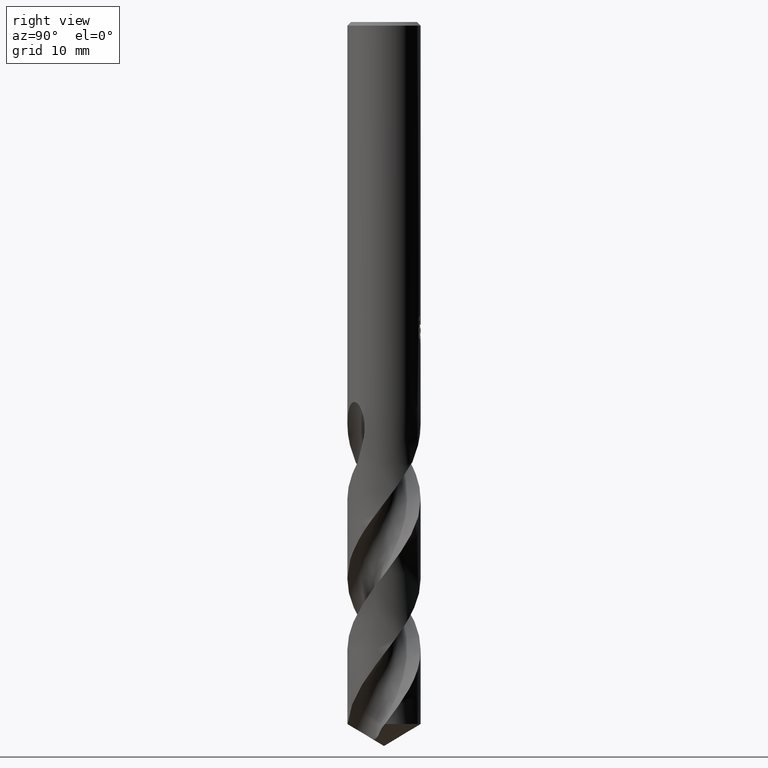
[diagram: clean part render]
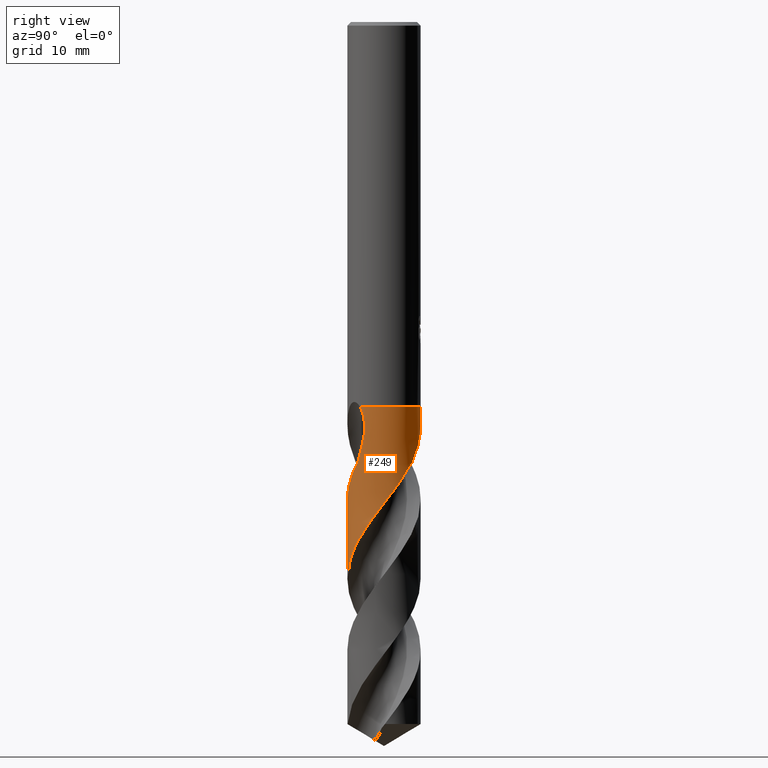
[diagram: same view with one face highlighted and labeled with its STEP entity id]
A machine part, right view. The second image highlights one B-rep face of the part: STEP entity #249.
In plain terms, the highlighted conical surface has half-angle 0 deg.
Its self-contained STEP definition (entity closure, byte-faithful):
#249=ADVANCED_FACE('',(#715),#716,.T.);
#257=VERTEX_POINT('',#725);
#309=VERTEX_POINT('',#781);
#311=EDGE_CURVE('',#333,#257,#783,.T.);
#313=VERTEX_POINT('',#785);
#317=EDGE_CURVE('',#431,#309,#789,.T.);
#333=VERTEX_POINT('',#808);
#375=VERTEX_POINT('',#856);
#413=VERTEX_POINT('',#899);
#431=VERTEX_POINT('',#917);
#513=EDGE_CURVE('',#313,#697,#1005,.T.);
#531=EDGE_CURVE('',#375,#309,#1024,.T.);
#543=EDGE_CURVE('',#333,#431,#1037,.T.);
#551=EDGE_CURVE('',#375,#413,#1046,.T.);
#581=EDGE_CURVE('',#697,#257,#1079,.T.);
#661=EDGE_CURVE('',#413,#313,#1163,.T.);
#697=VERTEX_POINT('',#1203);
#715=FACE_OUTER_BOUND('',#1211,.T.);
#716=CONICAL_SURFACE('',#1212,3.99995,2.89046099256783E-006);
#725=CARTESIAN_POINT('',(-1.21777905109929E-011,-3.99992914034282,-52.0815554692641));
#781=CARTESIAN_POINT('',(-1.18596217657772E-012,3.9999052060114,-43.8011007306286));
#783=LINE('',#1561,#1562);
#785=CARTESIAN_POINT('',(3.2544836176434,-2.32543022103747,-45.8628151484913));
#789=B_SPLINE_CURVE_WITH_KNOTS('',3,(#1569,#1570,#1571,#1572,#1573,#1574,#1575,#1576,#1577,#1578,#1579,#1580,#1581,#1582),.UNSPECIFIED.,.F.,.F.,(4,2,2,2,2,2,4),(0.0,1.95978279937062,3.02986246573041,3.99907486075391,5.12504900193477,6.47758972390981,7.17437695652977),.UNSPECIFIED.);
#808=CARTESIAN_POINT('',(1.01720232103812E-013,-3.99995417081684,-60.7412378104204));
#856=CARTESIAN_POINT('',(-4.87971918578224E-016,3.9999,-42.0));
#899=CARTESIAN_POINT('',(3.03029553357837,-2.61084449731786,-42.0));
#917=CARTESIAN_POINT('',(2.54883350937528,3.08265919556083,-48.053));
#1005=B_SPLINE_CURVE_WITH_KNOTS('',3,(#2806,#2807,#2808,#2809),.UNSPECIFIED.,.F.,.F.,(4,4),(0.0,2.29874023661087),.UNSPECIFIED.);
#1024=LINE('',#3152,#3153);
#1037=B_SPLINE_CURVE_WITH_KNOTS('',3,(#3308,#3309,#3310,#3311,#3312,#3313,#3314,#3315,#3316,#3317,#3318,#3319,#3320,#3321,#3322,#3323,#3324,#3325,#3326,#3327,#3328,#3329,#3330,#3331,#3332,#3333,#3334,#3335,#3336,#3337,#3338,#3339,#3340,#3341,#3342,#3343,#3344,#3345,#3346,#3347,#3348,#3349,#3350,#3351,#3352,#3353,#3354,#3355,#3356,#3357,#3358,#3359,#3360,#3361,#3362,#3363,#3364,#3365,#3366,#3367,#3368,#3369,#3370,#3371,#3372,#3373,#3374,#3375),.UNSPECIFIED.,.F.,.F.,(4,2,2,2,2,2,2,2,2,2,2,2,2,2,2,2,2,2,2,2,2,2,2,2,2,2,2,2,2,2,2,2,2,4),(0.0,1.08381704728036,2.69457633701438,3.906303774686,4.71752860917186,6.50800141971498,6.87784773316243,8.56059955861269,9.92706662388666,11.0227689845944,12.0787478253675,13.9114701973985,14.2383592020076,16.0993529177167,16.9316434101161,18.877634107045,19.0248297090575,20.2900278453995,22.1224821250209,23.1453343536838,24.8937144436607,26.264613155619,26.395979640286,28.5128920807949,28.9597118785904,30.6214988299567,33.1601492353627,34.3748303603895,35.1885733469438,35.5960557578818,36.0060165974515,36.6075316606588,37.3553390409897,38.8530327277368),.UNSPECIFIED.);
#1046=CIRCLE('',#3400,3.9999);
#1079=B_SPLINE_CURVE_WITH_KNOTS('',3,(#3487,#3488,#3489,#3490,#3491,#3492,#3493,#3494,#3495,#3496,#3497,#3498,#3499,#3500,#3501,#3502,#3503,#3504,#3505,#3506,#3507,#3508,#3509,#3510,#3511,#3512,#3513,#3514,#3515,#3516,#3517,#3518,#3519,#3520,#3521,#3522,#3523,#3524,#3525,#3526,#3527,#3528,#3529,#3530,#3531,#3532,#3533,#3534,#3535,#3536,#3537,#3538,#3539,#3540,#3541,#3542,#3543,#3544,#3545,#3546,#3547,#3548,#3549,#3550,#3551,#3552,#3553,#3554,#3555,#3556,#3557,#3558,#3559,#3560,#3561,#3562,#3563,#3564,#3565,#3566,#3567,#3568,#3569,#3570),.UNSPECIFIED.,.F.,.F.,(4,2,2,2,2,2,2,2,2,2,2,2,2,2,2,2,2,2,2,2,2,2,2,2,2,2,2,2,2,2,2,2,2,2,2,2,2,2,2,2,2,4),(0.0,0.129805738667818,0.177545416112674,0.291457208082228,0.689942701393496,0.834694433080652,0.928982804660951,1.01872409104943,1.14086063107998,1.28136459755965,1.78488975208267,2.1859914122204,2.57958865333502,5.45458059366833,5.97051910107679,7.00118548895462,7.51011898246541,9.53164505189711,9.66414360541162,11.219617915367,11.7345083907945,12.2194839106538,14.0982267862942,14.5859187120531,16.4163035001674,16.9232422786817,18.6715255202304,19.6862540479051,20.7105307359322,21.2252652806476,21.7229069928028,23.5330351425243,24.5413523753124,25.5669654786843,26.5935731944448,28.6111389655462,28.6633288052134,30.8035979195937,31.3482640211523,33.2646920161479,33.5059930761393,35.199456259217),.UNSPECIFIED.);
#1163=B_SPLINE_CURVE_WITH_KNOTS('',3,(#4635,#4636,#4637,#4638,#4639,#4640,#4641,#4642),.UNSPECIFIED.,.F.,.F.,(4,2,2,4),(0.0,0.749386748413021,1.79745853236949,2.79446463161417),.UNSPECIFIED.);
#1203=CARTESIAN_POINT('',(2.7802510236956,-2.8756815226533,-48.053));
#1211=EDGE_LOOP('',(#4861,#4862,#4863,#4864,#4865,#4866,#4867,#4868));
#1212=AXIS2_PLACEMENT_3D('',#4869,#4870,#4871);
#1561=CARTESIAN_POINT('',(4.9169479538437E-016,-3.99995,-59.2982787619449));
#1562=VECTOR('',#4947,1.0);
#1569=CARTESIAN_POINT('',(2.54883350937528,3.08265919556083,-48.053));
#1570=CARTESIAN_POINT('',(2.28498426568759,3.30081544268602,-47.4966356632645));
#1571=CARTESIAN_POINT('',(1.98161492517944,3.49474321844152,-46.9779245404389));
#1572=CARTESIAN_POINT('',(1.45262741666407,3.73244161256632,-46.1113878904964));
#1573=CARTESIAN_POINT('',(1.26227290126294,3.80081835774492,-45.8065126979263));
#1574=CARTESIAN_POINT('',(0.893771563937343,3.90300892806166,-45.216357969187));
#1575=CARTESIAN_POINT('',(0.717269906975791,3.93911246477559,-44.933828657597));
#1576=CARTESIAN_POINT('',(0.335220394512872,3.99121790026332,-44.3249092523902));
#1577=CARTESIAN_POINT('',(0.126480853657847,4.00345060619797,-43.993752554915));
#1578=CARTESIAN_POINT('',(-0.33707514522997,3.99369876958217,-43.285303301351));
#1579=CARTESIAN_POINT('',(-0.611916173662359,3.96353954969864,-42.8821906984876));
#1580=CARTESIAN_POINT('',(-1.04210071724121,3.86468078902556,-42.3426660363617));
#1581=CARTESIAN_POINT('',(-1.1997901123826,3.81970048771793,-42.1605608611572));
#1582=CARTESIAN_POINT('',(-1.36371149292711,3.76025145090837,-42.0));
#2806=CARTESIAN_POINT('',(3.25448361769602,-2.32543022096383,-45.8628151485202));
#2807=CARTESIAN_POINT('',(3.12553310838017,-2.50590254648008,-46.5962560670105));
#2808=CARTESIAN_POINT('',(2.97011425700859,-2.69211607678959,-47.3340611580416));
#2809=CARTESIAN_POINT('',(2.7802510236956,-2.8756815226533,-48.053));
#3152=CARTESIAN_POINT('',(-4.87978041609993E-016,3.99995,-59.2982787619449));
#3153=VECTOR('',#5221,1.0);
#3308=CARTESIAN_POINT('',(-0.439526114631792,3.97577876579629,-76.5965575238898));
#3309=CARTESIAN_POINT('',(-0.657437893725369,3.95168757683534,-76.3094133416986));
#3310=CARTESIAN_POINT('',(-0.873203880455964,3.90970140424734,-76.0239075468738));
#3311=CARTESIAN_POINT('',(-1.39892834872547,3.76159169206006,-75.3110320743855));
#3312=CARTESIAN_POINT('',(-1.70103900882607,3.63497490426972,-74.8832825492511));
#3313=CARTESIAN_POINT('',(-2.19780705001082,3.35110764522967,-74.1365277652984));
#3314=CARTESIAN_POINT('',(-2.39921434360287,3.20995671576263,-73.8178125326438));
#3315=CARTESIAN_POINT('',(-2.71147539685559,2.9452959943813,-73.2821022134741));
#3316=CARTESIAN_POINT('',(-2.82990044193886,2.83169807622949,-73.0663933320667));
#3317=CARTESIAN_POINT('',(-3.18661820514461,2.44470117155424,-72.3773808673431));
#3318=CARTESIAN_POINT('',(-3.39461553150169,2.14647577209188,-71.9097167293438));
#3319=CARTESIAN_POINT('',(-3.59371846479598,1.75802459881526,-71.337555741648));
#3320=CARTESIAN_POINT('',(-3.62587907967576,1.69069240931427,-71.2394322428267));
#3321=CARTESIAN_POINT('',(-3.79379607834648,1.31230816956878,-70.6961893646739));
#3322=CARTESIAN_POINT('',(-3.89156845671915,0.985543421449008,-70.2562667645886));
#3323=CARTESIAN_POINT('',(-3.99172218704187,0.377245646877638,-69.4510194499115));
#3324=CARTESIAN_POINT('',(-4.00823765535997,0.10093649395786,-69.088372630396));
#3325=CARTESIAN_POINT('',(-3.98644634946459,-0.396402435508757,-68.4381648301865));
#3326=CARTESIAN_POINT('',(-3.95838158798192,-0.616503912182158,-68.1503097629568));
#3327=CARTESIAN_POINT('',(-3.8677870007426,-1.04191165410065,-67.5821150145974));
#3328=CARTESIAN_POINT('',(-3.80676270411105,-1.24649753198298,-67.3019082765636));
#3329=CARTESIAN_POINT('',(-3.59613481149789,-1.79007696565264,-66.5389894421356));
#3330=CARTESIAN_POINT('',(-3.41547785226216,-2.11436356417142,-66.0617988152111));
#3331=CARTESIAN_POINT('',(-3.15350074077483,-2.46160746904651,-65.4911389296564));
#3332=CARTESIAN_POINT('',(-3.11260935218337,-2.51311381139764,-65.4046469891908));
#3333=CARTESIAN_POINT('',(-2.83011140856367,-2.85144812062183,-64.8263618926235));
#3334=CARTESIAN_POINT('',(-2.55048260966644,-3.10413739594209,-64.3417412554935));
#3335=CARTESIAN_POINT('',(-2.10033875606205,-3.40829312544873,-63.6310375932226));
#3336=CARTESIAN_POINT('',(-1.95564975002931,-3.49331811610692,-63.4104884407267));
#3337=CARTESIAN_POINT('',(-1.45598358986621,-3.74614972797824,-62.6773533367131));
#3338=CARTESIAN_POINT('',(-1.08232694957761,-3.87057930192677,-62.1719813409034));
#3339=CARTESIAN_POINT('',(-0.667821791314389,-3.94392494442897,-61.6192846306638));
#3340=CARTESIAN_POINT('',(-0.638664183522117,-3.94875110091821,-61.5804246076487));
#3341=CARTESIAN_POINT('',(-0.35823601144061,-3.99198115559335,-61.207737683039));
#3342=CARTESIAN_POINT('',(-0.103416275108714,-4.00675735277985,-60.8762681688313));
#3343=CARTESIAN_POINT('',(0.521126099257342,-3.98305653036782,-60.0612597469888));
#3344=CARTESIAN_POINT('',(0.88660437656289,-3.91789958006515,-59.5777234251761));
#3345=CARTESIAN_POINT('',(1.4338276789767,-3.73981619342242,-58.8258473854663));
#3346=CARTESIAN_POINT('',(1.62467143721942,-3.6609512601015,-58.5577392021364));
#3347=CARTESIAN_POINT('',(2.12307781934738,-3.40828319695626,-57.8283119687334));
#3348=CARTESIAN_POINT('',(2.4149824148053,-3.20808026050816,-57.3663530095638));
#3349=CARTESIAN_POINT('',(2.88246750849689,-2.78700145687302,-56.5455270694371));
#3350=CARTESIAN_POINT('',(3.06771544475581,-2.5815518428758,-56.187371415578));
#3351=CARTESIAN_POINT('',(3.24561926090638,-2.33798421241586,-55.7910273053209));
#3352=CARTESIAN_POINT('',(3.26095620290282,-2.31654517766576,-55.7563607452822));
#3353=CARTESIAN_POINT('',(3.52052578173655,-1.94598826715558,-55.1620576601903));
#3354=CARTESIAN_POINT('',(3.70774171853152,-1.56017558372036,-54.6130494893113));
#3355=CARTESIAN_POINT('',(3.85649332585924,-1.06538433556275,-53.9368372773157));
#3356=CARTESIAN_POINT('',(3.87946376269001,-0.978422578811302,-53.8187420719897));
#3357=CARTESIAN_POINT('',(3.973913488786,-0.56496622802872,-53.262775889249));
#3358=CARTESIAN_POINT('',(4.00730898662791,-0.230608836986193,-52.8273912054816));
#3359=CARTESIAN_POINT('',(3.98521820201826,0.615984684640888,-51.7212535368685));
#3360=CARTESIAN_POINT('',(3.87378361387529,1.12136553605037,-51.0509312502966));
#3361=CARTESIAN_POINT('',(3.57111862053359,1.81851464350654,-50.0661458188031));
#3362=CARTESIAN_POINT('',(3.45488648065797,2.02989028898482,-49.7629552247533));
#3363=CARTESIAN_POINT('',(3.23212810283017,2.36187168892308,-49.2152314078994));
#3364=CARTESIAN_POINT('',(3.16461401196261,2.446911484232,-49.0534498261865));
#3365=CARTESIAN_POINT('',(3.11526048638844,2.50902636738281,-48.939517436878));
#3366=CARTESIAN_POINT('',(3.0982626522739,2.52999756552917,-48.9019209426015));
#3367=CARTESIAN_POINT('',(3.0629993240374,2.57257882787009,-48.8272345575406));
#3368=CARTESIAN_POINT('',(3.04475673956009,2.5941556064591,-48.7902128912178));
#3369=CARTESIAN_POINT('',(2.9982727018829,2.64792415824842,-48.6998390939982));
#3370=CARTESIAN_POINT('',(2.96940833933049,2.68028874026909,-48.6470683981149));
#3371=CARTESIAN_POINT('',(2.9017082378639,2.7536340331179,-48.5306273894662));
#3372=CARTESIAN_POINT('',(2.86227829495775,2.79466173846963,-48.4676405959699));
#3373=CARTESIAN_POINT('',(2.73774423872381,2.91853159523335,-48.2824907237981));
#3374=CARTESIAN_POINT('',(2.64727141226444,3.00126825709339,-48.1654908259571));
#3375=CARTESIAN_POINT('',(2.54883350937528,3.08265919556083,-48.053));
#3400=AXIS2_PLACEMENT_3D('',#5244,#5245,#5246);
#3487=CARTESIAN_POINT('',(2.7802510236956,-2.8756815226533,-48.053));
#3488=CARTESIAN_POINT('',(2.76217186062651,-2.89316086392441,-48.0882106016455));
#3489=CARTESIAN_POINT('',(2.74389151181241,-2.91050526578498,-48.1234143122592));
#3490=CARTESIAN_POINT('',(2.71856582748303,-2.93408062489717,-48.1715059620797));
#3491=CARTESIAN_POINT('',(2.71172665444669,-2.94040279346906,-48.1844269840968));
#3492=CARTESIAN_POINT('',(2.68845637931369,-2.96176328970846,-48.2281544679163));
#3493=CARTESIAN_POINT('',(2.67189497916245,-2.97671383961934,-48.2588791657596));
#3494=CARTESIAN_POINT('',(2.59641786752828,-3.04370195399737,-48.396956079595));
#3495=CARTESIAN_POINT('',(2.5364774854976,-3.09388910606512,-48.5013014419056));
#3496=CARTESIAN_POINT('',(2.44997668169367,-3.16193420692297,-48.6448690050728));
#3497=CARTESIAN_POINT('',(2.4266623051349,-3.17986460994849,-48.6829320019279));
#3498=CARTESIAN_POINT('',(2.38762652711157,-3.20920029590155,-48.7457585490735));
#3499=CARTESIAN_POINT('',(2.37212084197232,-3.22067898836254,-48.7704858570699));
#3500=CARTESIAN_POINT('',(2.34162656585382,-3.24291248512362,-48.8187300945006));
#3501=CARTESIAN_POINT('',(2.32666681600489,-3.25366254601907,-48.8422198829945));
#3502=CARTESIAN_POINT('',(2.29112752181607,-3.27882972313399,-48.8976766165681));
#3503=CARTESIAN_POINT('',(2.27049914310464,-3.29314811881124,-48.9295949205724));
#3504=CARTESIAN_POINT('',(2.22584858555225,-3.32352139983522,-48.9982879294872));
#3505=CARTESIAN_POINT('',(2.20155417632304,-3.33966886588951,-49.0354202869225));
#3506=CARTESIAN_POINT('',(2.08837579175576,-3.41308925285199,-49.2082460489365));
#3507=CARTESIAN_POINT('',(1.99818299646747,-3.46662257621711,-49.3448594198137));
#3508=CARTESIAN_POINT('',(1.83376841635473,-3.555776409028,-49.5898591004762));
#3509=CARTESIAN_POINT('',(1.75970670981622,-3.59300314668079,-49.6988263903479));
#3510=CARTESIAN_POINT('',(1.61085545468464,-3.66212160684322,-49.9143451266625));
#3511=CARTESIAN_POINT('',(1.53611395670499,-3.69409892930153,-50.0207746254761));
#3512=CARTESIAN_POINT('',(0.90672372960693,-3.94092172531617,-50.905296258969));
#3513=CARTESIAN_POINT('',(0.311443104330172,-4.03191513360884,-51.6726293860447));
#3514=CARTESIAN_POINT('',(-0.388477241052627,-3.98245251957969,-52.5904170323972));
#3515=CARTESIAN_POINT('',(-0.494655092897482,-3.97066418286075,-52.7299852931377));
#3516=CARTESIAN_POINT('',(-0.811225714482818,-3.92261417707471,-53.1484610824657));
#3517=CARTESIAN_POINT('',(-1.01928193657253,-3.87376455530615,-53.4268966135523));
#3518=CARTESIAN_POINT('',(-1.32275128713962,-3.77636105344064,-53.8435268382878));
#3519=CARTESIAN_POINT('',(-1.42171735692448,-3.74022482036616,-53.9811952920776));
#3520=CARTESIAN_POINT('',(-1.90598089440276,-3.54141511899073,-54.6662671287569));
#3521=CARTESIAN_POINT('',(-2.26577308364209,-3.32280218499157,-55.2100234897948));
#3522=CARTESIAN_POINT('',(-2.60614334884258,-3.0345162060886,-55.7928282404093));
#3523=CARTESIAN_POINT('',(-2.62689247592583,-3.01657225467436,-55.8286735167287));
#3524=CARTESIAN_POINT('',(-2.8888555194553,-2.78527341766972,-56.2855119771522));
#3525=CARTESIAN_POINT('',(-3.10369983045424,-2.54368916283765,-56.705981564276));
#3526=CARTESIAN_POINT('',(-3.34798590545808,-2.19132687739135,-57.2663712104702));
#3527=CARTESIAN_POINT('',(-3.40521752241856,-2.10129137983736,-57.4056397359866));
#3528=CARTESIAN_POINT('',(-3.50924710296393,-1.92219651122996,-57.6762349397192));
#3529=CARTESIAN_POINT('',(-3.55639408565171,-1.83349542813813,-57.8073967852464));
#3530=CARTESIAN_POINT('',(-3.76963084416123,-1.39309630916044,-58.4474375176464));
#3531=CARTESIAN_POINT('',(-3.8872454195685,-1.02001159054764,-58.9539533925264));
#3532=CARTESIAN_POINT('',(-3.9651684826198,-0.535961753185442,-59.5944988017035));
#3533=CARTESIAN_POINT('',(-3.97743556041567,-0.435674653757947,-59.726411575052));
#3534=CARTESIAN_POINT('',(-4.01764048243581,0.042592979590037,-60.3542027250845));
#3535=CARTESIAN_POINT('',(-3.99556468550695,0.423045841409674,-60.8480061754432));
#3536=CARTESIAN_POINT('',(-3.89932681535782,0.897739606612312,-61.4807951014431));
#3537=CARTESIAN_POINT('',(-3.87441447933888,0.999794640792338,-61.6179133768797));
#3538=CARTESIAN_POINT('',(-3.7458830726351,1.44883869359821,-62.2287654096383));
#3539=CARTESIAN_POINT('',(-3.59937921401061,1.78197945412893,-62.7008903841985));
#3540=CARTESIAN_POINT('',(-3.30002826661395,2.270185633597,-63.4491078664884));
#3541=CARTESIAN_POINT('',(-3.17617789539747,2.44043890615542,-63.7234078285705));
#3542=CARTESIAN_POINT('',(-2.90173912526402,2.76126883817286,-64.2759206418889));
#3543=CARTESIAN_POINT('',(-2.75122106212384,2.9112809707534,-64.5531075675005));
#3544=CARTESIAN_POINT('',(-2.50814598984565,3.11774157133484,-64.9699528253001));
#3545=CARTESIAN_POINT('',(-2.42410727259792,3.18352354551136,-65.1092725182946));
#3546=CARTESIAN_POINT('',(-2.25382178815524,3.30615614030655,-65.383431531269));
#3547=CARTESIAN_POINT('',(-2.1678507956997,3.36315238166756,-65.5180886423391));
#3548=CARTESIAN_POINT('',(-1.75949282444701,3.61172384980132,-66.1433773659572));
#3549=CARTESIAN_POINT('',(-1.41318823359058,3.76078535730264,-66.6320472729555));
#3550=CARTESIAN_POINT('',(-0.849391409471965,3.91433555847723,-67.3954651581384));
#3551=CARTESIAN_POINT('',(-0.643799935421507,3.95334347477957,-67.6682478833671));
#3552=CARTESIAN_POINT('',(-0.225072940644831,3.99928328825229,-68.219518643922));
#3553=CARTESIAN_POINT('',(-0.0123253010987588,4.00560349379517,-68.4970744313319));
#3554=CARTESIAN_POINT('',(0.412547834375932,3.98433383511078,-69.0530219447163));
#3555=CARTESIAN_POINT('',(0.623816337641359,3.95675562521187,-69.3303172556429));
#3556=CARTESIAN_POINT('',(1.24066393670337,3.82561050338891,-70.1553769936746));
#3557=CARTESIAN_POINT('',(1.63354728903174,3.67509909028422,-70.6989013606182));
#3558=CARTESIAN_POINT('',(2.00541305526019,3.46096982727121,-71.2596204154966));
#3559=CARTESIAN_POINT('',(2.0147681169492,3.45553229374157,-71.2737597550955));
#3560=CARTESIAN_POINT('',(2.406832112218,3.22551573535225,-71.8678332840397));
#3561=CARTESIAN_POINT('',(2.74973130641279,2.93870385344377,-72.4452849782103));
#3562=CARTESIAN_POINT('',(3.11194794197628,2.51564414118981,-73.1728760052907));
#3563=CARTESIAN_POINT('',(3.18172206726174,2.4267906054704,-73.3203776961064));
#3564=CARTESIAN_POINT('',(3.47950605944975,2.01264645743027,-73.9877178988489));
#3565=CARTESIAN_POINT('',(3.66217499766412,1.65724215232312,-74.5048080849892));
#3566=CARTESIAN_POINT('',(3.80547345132336,1.23322434028312,-75.0896598265716));
#3567=CARTESIAN_POINT('',(3.82060410107685,1.18551885367766,-75.1550463182779));
#3568=CARTESIAN_POINT('',(3.93470764566394,0.800864096861198,-75.6796056809193));
#3569=CARTESIAN_POINT('',(3.98985071499624,0.45232141891036,-76.1375215957247));
#3570=CARTESIAN_POINT('',(3.998724977818,0.100987879344245,-76.5965575238898));
#4635=CARTESIAN_POINT('',(3.03029553357838,-2.61084449731786,-42.0));
#4636=CARTESIAN_POINT('',(3.12912246902516,-2.49614118031614,-42.1986811996329));
#4637=CARTESIAN_POINT('',(3.20702879069971,-2.39256736401692,-42.4456343642829));
#4638=CARTESIAN_POINT('',(3.34694977614651,-2.1947911715509,-43.1256680785334));
#4639=CARTESIAN_POINT('',(3.39340690505676,-2.11755985081049,-43.6064134429534));
#4640=CARTESIAN_POINT('',(3.39932908826572,-2.10804483144582,-44.6552801171671));
#4641=CARTESIAN_POINT('',(3.36561244321398,-2.16990018334517,-45.2307512925417));
#4642=CARTESIAN_POINT('',(3.2544836176434,-2.32543022103747,-45.8628151484913));
#4861=ORIENTED_EDGE('',*,*,#531,.F.);
#4862=ORIENTED_EDGE('',*,*,#551,.T.);
#4863=ORIENTED_EDGE('',*,*,#661,.T.);
#4864=ORIENTED_EDGE('',*,*,#513,.T.);
#4865=ORIENTED_EDGE('',*,*,#581,.T.);
#4866=ORIENTED_EDGE('',*,*,#311,.F.);
#4867=ORIENTED_EDGE('',*,*,#543,.T.);
#4868=ORIENTED_EDGE('',*,*,#317,.T.);
#4869=CARTESIAN_POINT('',(0.0,0.0,-59.2982787619449));
#4870=DIRECTION('',(0.0,-0.0,-1.0));
#4871=DIRECTION('',(0.0,1.0,0.0));
#4947=DIRECTION('',(-3.53967689696938E-022,2.89046099256381E-006,0.999999999995823));
#5221=DIRECTION('',(-3.53967689696938E-022,2.89046099256381E-006,-0.999999999995823));
#5244=CARTESIAN_POINT('',(0.0,0.0,-42.0));
#5245=DIRECTION('',(0.0,0.0,-1.0));
#5246=DIRECTION('',(0.0,1.0,0.0));